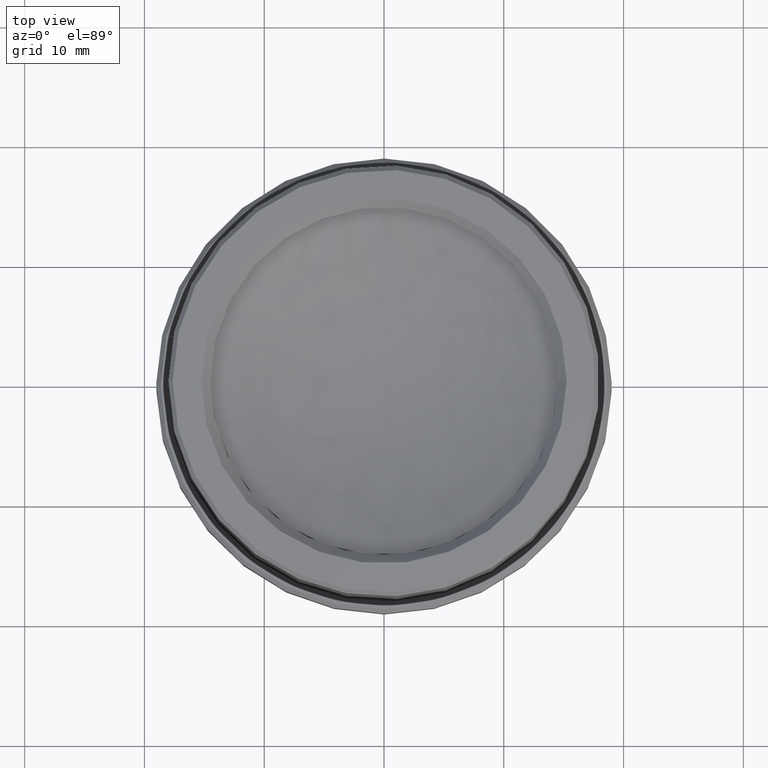
[diagram: clean part render]
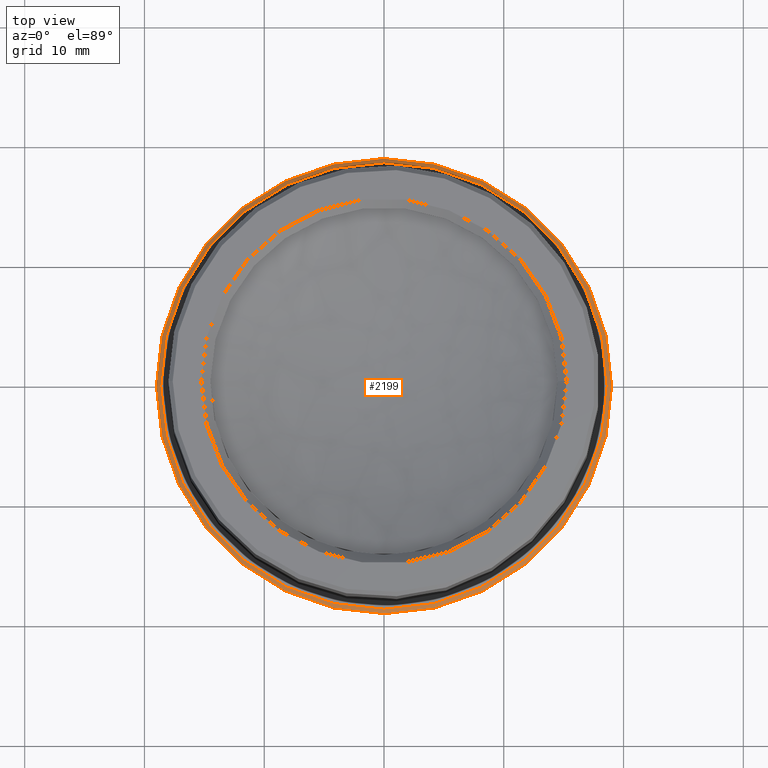
[diagram: same view with one face highlighted and labeled with its STEP entity id]
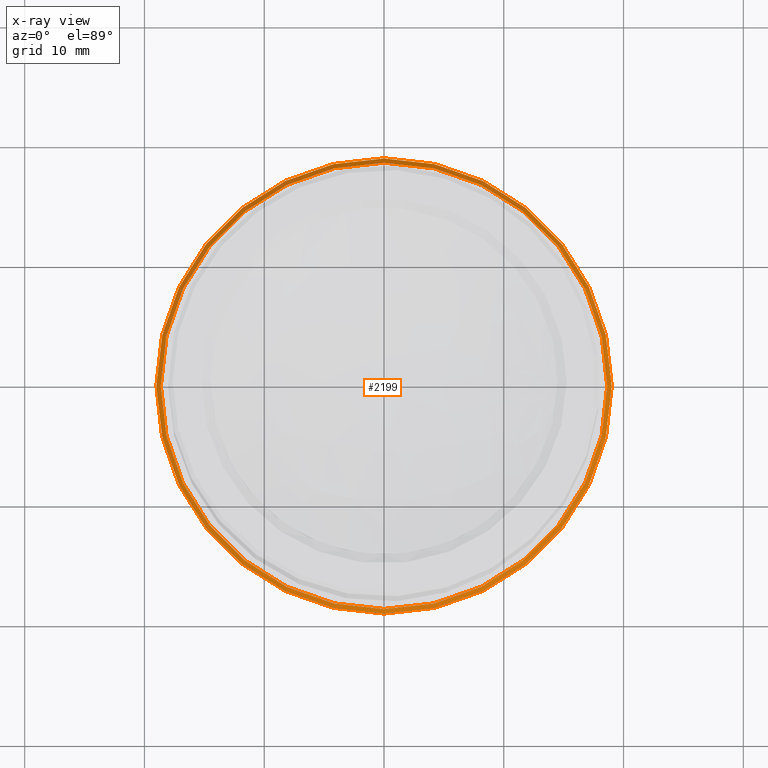
[diagram: x-ray of the same camera — body ghosted, the highlighted face saturated]
A machine part, top view. The second image highlights one B-rep face of the part: STEP entity #2199.
The next image is the same camera in x-ray: the body ghosted, the highlighted face saturated — about 0% of this face is hidden behind the body in this view.
In plain terms, the highlighted conical surface has half-angle 45 deg.
Its self-contained STEP definition (entity closure, byte-faithful):
#213 = DIRECTION ( 'NONE',  ( -1.000000000000000000, 0.000000000000000000, 0.000000000000000000 ) ) ;
#235 = AXIS2_PLACEMENT_3D ( 'NONE', #672, #1078, #661 ) ;
#440 = ORIENTED_EDGE ( 'NONE', *, *, #2601, .F. ) ;
#460 = CARTESIAN_POINT ( 'NONE',  ( 0.000000000000000000, 18.99999999999999645, 215.3172689990073252 ) ) ;
#661 = DIRECTION ( 'NONE',  ( 0.000000000000000000, 1.000000000000000000, 0.000000000000000000 ) ) ;
#672 = CARTESIAN_POINT ( 'NONE',  ( 0.000000000000000000, -3.081487911019577365E-30, 215.3172689990073252 ) ) ;
#690 = CARTESIAN_POINT ( 'NONE',  ( 0.000000000000000000, 0.000000000000000000, 215.3172689990072968 ) ) ;
#730 = AXIS2_PLACEMENT_3D ( 'NONE', #2004, #1580, #2221 ) ;
#896 = FACE_OUTER_BOUND ( 'NONE', #1951, .T. ) ;
#981 = CARTESIAN_POINT ( 'NONE',  ( -18.63999999999993662, 0.000000000000000000, 215.6772689990074241 ) ) ;
#1078 = DIRECTION ( 'NONE',  ( -0.000000000000000000, 7.304098846218137626E-16, 1.000000000000000000 ) ) ;
#1226 = AXIS2_PLACEMENT_3D ( 'NONE', #690, #1739, #213 ) ;
#1322 = EDGE_LOOP ( 'NONE', ( #440 ) ) ;
#1576 = EDGE_CURVE ( 'NONE', #2023, #2023, #1883, .T. ) ;
#1580 = DIRECTION ( 'NONE',  ( -0.000000000000000000, -0.000000000000000000, 1.000000000000000000 ) ) ;
#1739 = DIRECTION ( 'NONE',  ( 0.000000000000000000, 0.000000000000000000, -1.000000000000000000 ) ) ;
#1883 = CIRCLE ( 'NONE', #235, 18.99999999999999645 ) ;
#1936 = CIRCLE ( 'NONE', #730, 18.63999999999993662 ) ;
#1951 = EDGE_LOOP ( 'NONE', ( #2376 ) ) ;
#1978 = FACE_BOUND ( 'NONE', #1322, .T. ) ;
#2004 = CARTESIAN_POINT ( 'NONE',  ( 0.000000000000000000, 0.000000000000000000, 215.6772689990074241 ) ) ;
#2023 = VERTEX_POINT ( 'NONE', #460 ) ;
#2185 = VERTEX_POINT ( 'NONE', #981 ) ;
#2199 = ADVANCED_FACE ( 'NONE', ( #896, #1978 ), #2394, .T. ) ;
#2221 = DIRECTION ( 'NONE',  ( -1.000000000000000000, 0.000000000000000000, 0.000000000000000000 ) ) ;
#2376 = ORIENTED_EDGE ( 'NONE', *, *, #1576, .T. ) ;
#2394 = CONICAL_SURFACE ( 'NONE', #1226, 19.00000000000001776, 0.7853981633974049803 ) ;
#2601 = EDGE_CURVE ( 'NONE', #2185, #2185, #1936, .T. ) ;